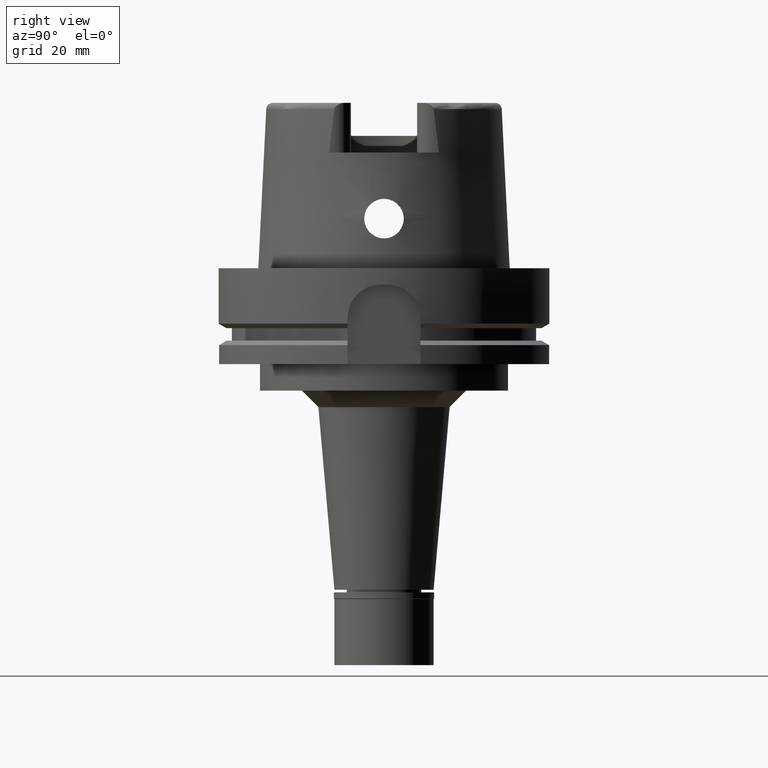
[diagram: clean part render]
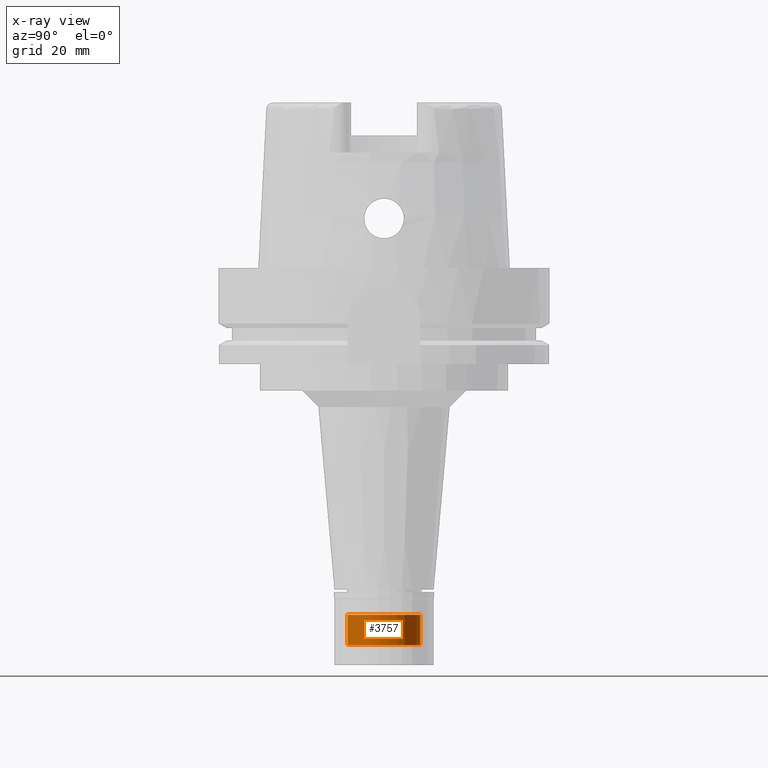
[diagram: x-ray — body ghosted, one internal face saturated and labeled with its STEP entity id]
A machine part, right view, then the same camera in x-ray: the body is ghosted and one INTERNAL B-rep face — a face not visible from any outside direction — is saturated and labeled: STEP entity #3757.
In plain terms, the highlighted cylindrical surface (edge-blend (fillet) strip) has radius 11 mm, axis along (0, 0, -1).
Its self-contained STEP definition (entity closure, byte-faithful):
#37 = CARTESIAN_POINT ( 'NONE',  ( 0.0000000000000000000, 0.0000000000000000000, 0.0000000000000000000 ) ) ;
#65 = DIRECTION ( 'NONE',  ( 0.0000000000000000000, 1.000000000000000000, 0.0000000000000000000 ) ) ;
#92 = ORIENTED_EDGE ( 'NONE', *, *, #357, .T. ) ;
#189 = VECTOR ( 'NONE', #5245, 1000.000000000000000 ) ;
#239 = AXIS2_PLACEMENT_3D ( 'NONE', #4674, #2540, #4484 ) ;
#282 = CIRCLE ( 'NONE', #3585, 11.00000000000000000 ) ;
#357 = EDGE_CURVE ( 'NONE', #4137, #794, #4092, .T. ) ;
#794 = VERTEX_POINT ( 'NONE', #3567 ) ;
#1137 = CARTESIAN_POINT ( 'NONE',  ( 0.0000000000000000000, 0.0000000000000000000, -16.00000000000000000 ) ) ;
#1230 = CYLINDRICAL_SURFACE ( 'NONE', #2145, 11.00000000000000000 ) ;
#1456 = ORIENTED_EDGE ( 'NONE', *, *, #4618, .T. ) ;
#1859 = EDGE_LOOP ( 'NONE', ( #1914, #1456, #92, #4247 ) ) ;
#1914 = ORIENTED_EDGE ( 'NONE', *, *, #4998, .T. ) ;
#2010 = VECTOR ( 'NONE', #2368, 1000.000000000000000 ) ;
#2119 = EDGE_CURVE ( 'NONE', #3941, #794, #2452, .T. ) ;
#2145 = AXIS2_PLACEMENT_3D ( 'NONE', #37, #2610, #2953 ) ;
#2368 = DIRECTION ( 'NONE',  ( 0.0000000000000000000, 0.0000000000000000000, 1.000000000000000000 ) ) ;
#2452 = LINE ( 'NONE', #4503, #2010 ) ;
#2540 = DIRECTION ( 'NONE',  ( 0.0000000000000000000, 0.0000000000000000000, 1.000000000000000000 ) ) ;
#2541 = CARTESIAN_POINT ( 'NONE',  ( 0.0000000000000000000, -11.00000000000000000, -6.799999999999999822 ) ) ;
#2610 = DIRECTION ( 'NONE',  ( 0.0000000000000000000, 0.0000000000000000000, -1.000000000000000000 ) ) ;
#2953 = DIRECTION ( 'NONE',  ( 0.0000000000000000000, -1.000000000000000000, 0.0000000000000000000 ) ) ;
#3567 = CARTESIAN_POINT ( 'NONE',  ( 0.0000000000000000000, 11.00000000000000000, -6.799999999999999822 ) ) ;
#3585 = AXIS2_PLACEMENT_3D ( 'NONE', #1137, #3792, #65 ) ;
#3757 = ADVANCED_FACE ( 'NONE', ( #5123 ), #1230, .F. ) ;
#3792 = DIRECTION ( 'NONE',  ( 0.0000000000000000000, 0.0000000000000000000, -1.000000000000000000 ) ) ;
#3833 = LINE ( 'NONE', #5563, #189 ) ;
#3941 = VERTEX_POINT ( 'NONE', #4552 ) ;
#4017 = VERTEX_POINT ( 'NONE', #4578 ) ;
#4092 = CIRCLE ( 'NONE', #239, 11.00000000000000000 ) ;
#4137 = VERTEX_POINT ( 'NONE', #2541 ) ;
#4247 = ORIENTED_EDGE ( 'NONE', *, *, #2119, .F. ) ;
#4484 = DIRECTION ( 'NONE',  ( 0.0000000000000000000, -1.000000000000000000, 0.0000000000000000000 ) ) ;
#4503 = CARTESIAN_POINT ( 'NONE',  ( 0.0000000000000000000, 11.00000000000000000, -16.00000000000000000 ) ) ;
#4552 = CARTESIAN_POINT ( 'NONE',  ( 0.0000000000000000000, 11.00000000000000000, -16.00000000000000000 ) ) ;
#4578 = CARTESIAN_POINT ( 'NONE',  ( 0.0000000000000000000, -11.00000000000000000, -16.00000000000000000 ) ) ;
#4618 = EDGE_CURVE ( 'NONE', #4017, #4137, #3833, .T. ) ;
#4674 = CARTESIAN_POINT ( 'NONE',  ( 0.0000000000000000000, 0.0000000000000000000, -6.799999999999999822 ) ) ;
#4998 = EDGE_CURVE ( 'NONE', #3941, #4017, #282, .T. ) ;
#5123 = FACE_OUTER_BOUND ( 'NONE', #1859, .T. ) ;
#5245 = DIRECTION ( 'NONE',  ( 0.0000000000000000000, 0.0000000000000000000, 1.000000000000000000 ) ) ;
#5563 = CARTESIAN_POINT ( 'NONE',  ( 0.0000000000000000000, -11.00000000000000000, -16.00000000000000000 ) ) ;